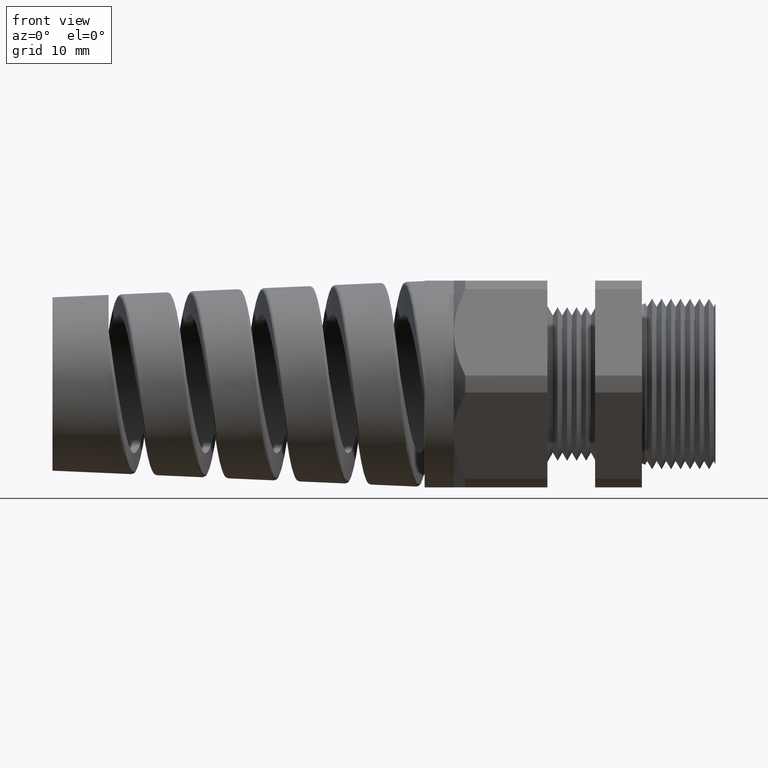
[diagram: clean part render]
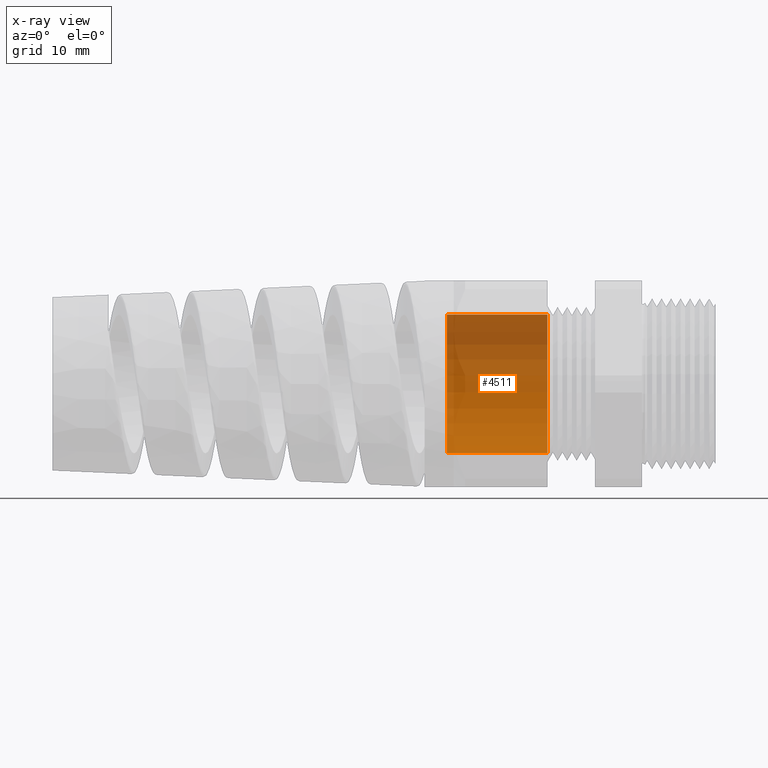
[diagram: x-ray — body ghosted, one internal face saturated and labeled with its STEP entity id]
A machine part, front view, then the same camera in x-ray: the body is ghosted and one INTERNAL B-rep face — a face not visible from any outside direction — is saturated and labeled: STEP entity #4511.
In plain terms, the highlighted cylindrical surface (partial cylindrical patch) has radius 7.4168 mm, axis along (1, 0, 0).
Its self-contained STEP definition (entity closure, byte-faithful):
#2784 = DIRECTION ( 'NONE',  ( 1.000000000000000000, 0.0000000000000000000, 0.0000000000000000000 ) ) ;
#2785 = VECTOR ( 'NONE', #2784, 39.37007874015748100 ) ;
#2786 = CARTESIAN_POINT ( 'NONE',  ( 0.0000000000000000000, 0.0000000000000000000, -0.2919999999999999300 ) ) ;
#2787 = LINE ( 'NONE', #2786, #2785 ) ;
#2799 = CARTESIAN_POINT ( 'NONE',  ( -0.7075590551181100100, 0.0000000000000000000, -0.2919999999999999300 ) ) ;
#4181 = EDGE_CURVE ( 'NONE', #8303, #4487, #5352, .T. ) ;
#4182 = ORIENTED_EDGE ( 'NONE', *, *, #4181, .F. ) ;
#4487 = VERTEX_POINT ( 'NONE', #6062 ) ;
#4500 = ORIENTED_EDGE ( 'NONE', *, *, #4510, .T. ) ;
#4503 = ORIENTED_EDGE ( 'NONE', *, *, #4529, .T. ) ;
#4504 = EDGE_LOOP ( 'NONE', ( #4503, #4500, #4182, #8386 ) ) ;
#4510 = EDGE_CURVE ( 'NONE', #4534, #4487, #6112, .T. ) ;
#4511 = ADVANCED_FACE ( 'NONE', ( #6108 ), #6107, .T. ) ;
#4529 = EDGE_CURVE ( 'NONE', #4532, #4534, #6139, .T. ) ;
#4532 = VERTEX_POINT ( 'NONE', #6129 ) ;
#4534 = VERTEX_POINT ( 'NONE', #6128 ) ;
#5348 = DIRECTION ( 'NONE',  ( 0.0000000000000000000, 0.0000000000000000000, -1.000000000000000000 ) ) ;
#5349 = DIRECTION ( 'NONE',  ( 1.000000000000000000, 0.0000000000000000000, 0.0000000000000000000 ) ) ;
#5350 = CARTESIAN_POINT ( 'NONE',  ( -0.7075590551181100100, 0.0000000000000000000, 0.0000000000000000000 ) ) ;
#5351 = AXIS2_PLACEMENT_3D ( 'NONE', #5350, #5349, #5348 ) ;
#5352 = CIRCLE ( 'NONE', #5351, 0.2919999999999999300 ) ;
#6062 = CARTESIAN_POINT ( 'NONE',  ( -0.7075590551181100100, 3.575968653510270800E-017, 0.2919999999999999800 ) ) ;
#6102 = DIRECTION ( 'NONE',  ( 0.0000000000000000000, 0.0000000000000000000, -1.000000000000000000 ) ) ;
#6103 = DIRECTION ( 'NONE',  ( 1.000000000000000000, 0.0000000000000000000, 0.0000000000000000000 ) ) ;
#6104 = CARTESIAN_POINT ( 'NONE',  ( 0.0000000000000000000, 0.0000000000000000000, 0.0000000000000000000 ) ) ;
#6105 = AXIS2_PLACEMENT_3D ( 'NONE', #6104, #6103, #6102 ) ;
#6107 = CYLINDRICAL_SURFACE ( 'NONE', #6105, 0.2919999999999999300 ) ;
#6108 = FACE_OUTER_BOUND ( 'NONE', #4504, .T. ) ;
#6109 = DIRECTION ( 'NONE',  ( 1.000000000000000000, 0.0000000000000000000, 0.0000000000000000000 ) ) ;
#6110 = VECTOR ( 'NONE', #6109, 39.37007874015748100 ) ;
#6111 = CARTESIAN_POINT ( 'NONE',  ( 0.0000000000000000000, 3.575968653510270200E-017, 0.2919999999999999300 ) ) ;
#6112 = LINE ( 'NONE', #6111, #6110 ) ;
#6128 = CARTESIAN_POINT ( 'NONE',  ( -1.129999999999999900, 3.575968653510270200E-017, 0.2919999999999999300 ) ) ;
#6129 = CARTESIAN_POINT ( 'NONE',  ( -1.129999999999999900, 0.0000000000000000000, -0.2919999999999999300 ) ) ;
#6135 = DIRECTION ( 'NONE',  ( 0.0000000000000000000, 0.0000000000000000000, -1.000000000000000000 ) ) ;
#6136 = DIRECTION ( 'NONE',  ( 1.000000000000000000, 0.0000000000000000000, 0.0000000000000000000 ) ) ;
#6137 = CARTESIAN_POINT ( 'NONE',  ( -1.129999999999999900, 0.0000000000000000000, 0.0000000000000000000 ) ) ;
#6138 = AXIS2_PLACEMENT_3D ( 'NONE', #6137, #6136, #6135 ) ;
#6139 = CIRCLE ( 'NONE', #6138, 0.2919999999999999300 ) ;
#8303 = VERTEX_POINT ( 'NONE', #2799 ) ;
#8386 = ORIENTED_EDGE ( 'NONE', *, *, #8387, .F. ) ;
#8387 = EDGE_CURVE ( 'NONE', #4532, #8303, #2787, .T. ) ;